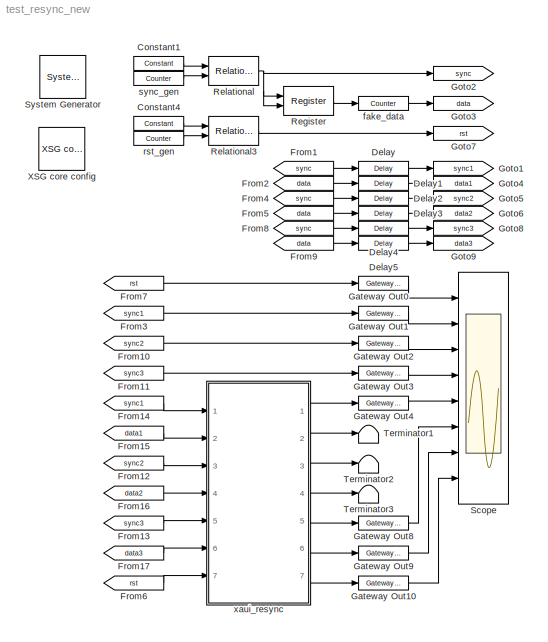
MODEL test_resync_new
KIND model
BLOCK [Reference]  System Generator  REF=xbsIndex_r4/ System Generator
  AttributesFormatString = System\\nGenerator
  FunctionWithSeparateData = off
  Ports = []
  RTWMemSecDataConstants = Inherit from model
  RTWMemSecDataInternal = Inherit from model
  RTWMemSecDataParameters = Inherit from model
  RTWMemSecFuncExecute = Inherit from model
  RTWMemSecFuncInitTerm = Inherit from model
  SID = 1
  ShowPortLabels = FromPortIcon
  SourceBlock = xbsIndex_r4/ System Generator
  SourceType = Xilinx System Generator Block
  SystemSampleTime = -1
  Tag = genX
  UserData = DataTag0
  UserDataPersistent = on
  block_type = sysgen
  block_version = 10.1.1
  clock_wrapper = Clock Enables
  core_generation = According to Block Masks
  dbl_ovrd = According to Block Masks
  dcm_input_clock_period = 100
  deprecated_control = off
  directory = ./isi_correlator_cropped/sysgen
  eval_field = 0
  has_advanced_control = 0
  incr_netlist = off
  infoedit = System Generator
  package = ff1136
  part = xc5vsx95t
  run_coregen = off
  sg_icon_stat = 46,43,-1,-1,red,beige,0,07734,right
  sg_mask_display = fprintf('','COMMENT: begin icon graphics');\npatch([0 46 46 0 ],[0 0 43 43 ],[0.93 0.92 0.86]);\npatch([11 4 14 4 11 22 25 28 40 30 21 14 23 14 21 30 40 28 25 22 11 ],[5 12 22 32 39 39 36 39 39 29 38 31 22 13 6 15 5 5 8 5 5 ],[0.6 0.2 0.25]);\nplot([0 46 46 0 0 ],[0 0 43 43 0 ]);\nfprintf('','COMMENT: end icon graphics');\nfprintf('','COMMENT: begin icon text');\nfprintf('','COMMENT: end icon text...<+5ch>
  sggui_pos = -1,-1,-1,-1
  simulink_period = 1
  speed = -1
  synthesis_tool = XST
  sysclk_period = 5
  testbench = off
  trim_vbits = Everywhere in SubSystem
  xilinxfamily = virtex5
BLOCK [Reference] Constant1  REF=xbsIndex_r4/Constant
  Ports = [0, 1]
  SID = 25
  SourceBlock = xbsIndex_r4/Constant
  SourceType = Xilinx Constant Block Block
  arith_type = Unsigned
  bin_pt = 0
  block_type = constant
  block_version = 10.1.3
  carry = CIN
  const = 10
  dbl_ovrd = off
  dsp48_infoedit = The use of this block for DSP48 instructions is deprecated.  Please use the Opmode block.
  equ = P=C
  explicit_period = on
  has_advanced_control = 0
  inp1 = P
  inp2 = PCIN>>17
  n_bits = 7
  opr = +
  opselect = C
  period = 1
  sg_icon_stat = 50,14,0,1,white,blue,0,46ffeebb,right,
  sg_list_contents = {'table'=>{'carry'=>'popup(0|1|CIN|~SIGN(P or PCIN)|~SIGN(A*B or A:B)|~SIGND(A*B or A:B))','inp1'=>'popup(0|P|A:B|A*B|C|P+C|A:B+C)','inp2'=>'popup(0|PCIN|P|C|PCIN>>17|P>>17)','opselect'=>'popup(C + A*B|PCIN + A*B|P + A*B|A * B|C + A:B|C - A:B|C|Custom)','userSelections'=>{'carry'=>'CIN','inp1'=>'P','inp2'=>'PCIN>>17','opselect'=>'C'}}}  <repeated x5 — deduplicated; at blocks: Constant1, Constant4, ConstantX, ConstantY, ConstantZ>
  sg_mask_display = fprintf('','COMMENT: begin icon graphics');\npatch([0 1 1 0 ],[0 0 1 1 ],[0.77 0.82 0.91]);\npatch([0.42 0.38 0.44 0.38 0.42 0.5 0.52 0.54 0.62 0.56 0.5 0.46 0.52 0.46 0.5 0.56 0.62 0.54 0.52 0.5 0.42 ],[0.142857 0.285714 0.5 0.714286 0.857143 0.857143 0.785714 0.857143 0.857143 0.642857 0.857143 0.714286 0.5 0.285714 0.142857 0.357143 0.142857 0.142857 0.214286 0.142857 0.142857 ],[0.98 0.96 0.92...<+207ch>
  sggui_pos = 20,20,400,346
BLOCK [Reference] Constant4  REF=xbsIndex_r4/Constant
  Ports = [0, 1]
  SID = 97
  SourceBlock = xbsIndex_r4/Constant
  SourceType = Xilinx Constant Block Block
  arith_type = Unsigned
  bin_pt = 0
  block_type = constant
  block_version = 10.1.3
  carry = CIN
  const = 5
  dbl_ovrd = off
  dsp48_infoedit = The use of this block for DSP48 instructions is deprecated.  Please use the Opmode block.
  equ = P=C
  explicit_period = on
  has_advanced_control = 0
  inp1 = P
  inp2 = PCIN>>17
  n_bits = 8
  opr = +
  opselect = C
  period = 1
  sg_icon_stat = 50,14,0,1,white,blue,0,98872051,right,
  sg_mask_display = fprintf('','COMMENT: begin icon graphics');\npatch([0 1 1 0 ],[0 0 1 1 ],[0.77 0.82 0.91]);\npatch([0.42 0.38 0.44 0.38 0.42 0.5 0.52 0.54 0.62 0.56 0.5 0.46 0.52 0.46 0.5 0.56 0.62 0.54 0.52 0.5 0.42 ],[0.142857 0.285714 0.5 0.714286 0.857143 0.857143 0.785714 0.857143 0.857143 0.642857 0.857143 0.714286 0.5 0.285714 0.142857 0.357143 0.142857 0.142857 0.214286 0.142857 0.142857 ],[0.98 0.96 0.92...<+206ch>  <repeated x4 — deduplicated; at blocks: Constant4, ConstantX, ConstantY, ConstantZ>
  sggui_pos = 20,20,400,346
BLOCK [Reference] Delay  REF=xbsIndex_r4/Delay
  Ports = [1, 1]
  SID = 112
  SourceBlock = xbsIndex_r4/Delay
  SourceType = Xilinx Delay Block
  block_type = delay
  block_version = 10.1.3
  dbl_ovrd = off
  en = off
  has_advanced_control = 0
  infoedit = Hardware notes: A delay line is a chain, each link of which is an SRL16 followed by a flip-flop.
  latency = 0
  reg_retiming = on
  sg_icon_stat = 50,14,1,1,white,blue,0,24450e6f,right,
  sg_mask_display = fprintf('','COMMENT: begin icon graphics');\npatch([0 1 1 0 ],[0 0 1 1 ],[0.77 0.82 0.91]);\npatch([0.42 0.38 0.44 0.38 0.42 0.5 0.52 0.54 0.62 0.56 0.5 0.46 0.52 0.46 0.5 0.56 0.62 0.54 0.52 0.5 0.42 ],[0.142857 0.285714 0.5 0.714286 0.857143 0.857143 0.785714 0.857143 0.857143 0.642857 0.857143 0.714286 0.5 0.285714 0.142857 0.357143 0.142857 0.142857 0.214286 0.142857 0.142857 ],[0.98 0.96 0.92...<+209ch>  <repeated x11 — deduplicated; at blocks: Delay, Delay1, Delay2, Delay3, Delay4, DelayX, DelayY, DelayZ>
  sggui_pos = 20,20,543,392
  xl_area = [0,0,0,0,0,0,0]
  xl_use_area = off
BLOCK [Reference] Delay1  REF=xbsIndex_r4/Delay
  Ports = [1, 1]
  SID = 113
  SourceBlock = xbsIndex_r4/Delay
  SourceType = Xilinx Delay Block
  block_type = delay
  block_version = 10.1.3
  dbl_ovrd = off
  en = off
  has_advanced_control = 0
  infoedit = Hardware notes: A delay line is a chain, each link of which is an SRL16 followed by a flip-flop.
  latency = 0
  reg_retiming = on
  sg_icon_stat = 50,14,1,1,white,blue,0,24450e6f,right,
  sggui_pos = 20,20,543,392
  xl_area = [0,0,0,0,0,0,0]
  xl_use_area = off
BLOCK [Reference] Delay2  REF=xbsIndex_r4/Delay
  Ports = [1, 1]
  SID = 118
  SourceBlock = xbsIndex_r4/Delay
  SourceType = Xilinx Delay Block
  block_type = delay
  block_version = 10.1.3
  dbl_ovrd = off
  en = off
  has_advanced_control = 0
  infoedit = Hardware notes: A delay line is a chain, each link of which is an SRL16 followed by a flip-flop.
  latency = 5
  reg_retiming = on
  sg_icon_stat = 50,14,1,1,white,blue,0,ec356abf,right,
  sggui_pos = 20,20,543,392
  xl_area = [0,0,0,0,0,0,0]
  xl_use_area = off
BLOCK [Reference] Delay3  REF=xbsIndex_r4/Delay
  Ports = [1, 1]
  SID = 119
  SourceBlock = xbsIndex_r4/Delay
  SourceType = Xilinx Delay Block
  block_type = delay
  block_version = 10.1.3
  dbl_ovrd = off
  en = off
  has_advanced_control = 0
  infoedit = Hardware notes: A delay line is a chain, each link of which is an SRL16 followed by a flip-flop.
  latency = 5
  reg_retiming = on
  sg_icon_stat = 50,14,1,1,white,blue,0,ec356abf,right,
  sggui_pos = 20,20,543,392
  xl_area = [0,0,0,0,0,0,0]
  xl_use_area = off
BLOCK [Reference] Delay4  REF=xbsIndex_r4/Delay
  Ports = [1, 1]
  SID = 122
  SourceBlock = xbsIndex_r4/Delay
  SourceType = Xilinx Delay Block
  block_type = delay
  block_version = 10.1.3
  dbl_ovrd = off
  en = off
  has_advanced_control = 0
  infoedit = Hardware notes: A delay line is a chain, each link of which is an SRL16 followed by a flip-flop.
  latency = 10
  reg_retiming = on
  sg_icon_stat = 50,14,1,1,white,blue,0,8c471295,right,
  sg_mask_display = fprintf('','COMMENT: begin icon graphics');\npatch([0 1 1 0 ],[0 0 1 1 ],[0.77 0.82 0.91]);\npatch([0.42 0.38 0.44 0.38 0.42 0.5 0.52 0.54 0.62 0.56 0.5 0.46 0.52 0.46 0.5 0.56 0.62 0.54 0.52 0.5 0.42 ],[0.142857 0.285714 0.5 0.714286 0.857143 0.857143 0.785714 0.857143 0.857143 0.642857 0.857143 0.714286 0.5 0.285714 0.142857 0.357143 0.142857 0.142857 0.214286 0.142857 0.142857 ],[0.98 0.96 0.92...<+210ch>
  sggui_pos = 20,20,543,392
  xl_area = [0,0,0,0,0,0,0]
  xl_use_area = off
BLOCK [Reference] Delay5  REF=xbsIndex_r4/Delay
  Ports = [1, 1]
  SID = 123
  SourceBlock = xbsIndex_r4/Delay
  SourceType = Xilinx Delay Block
  block_type = delay
  block_version = 10.1.3
  dbl_ovrd = off
  en = off
  has_advanced_control = 0
  infoedit = Hardware notes: A delay line is a chain, each link of which is an SRL16 followed by a flip-flop.
  latency = 10
  reg_retiming = on
  sg_icon_stat = 50,14,1,1,white,blue,0,8c471295,right,
  sg_mask_display = fprintf('','COMMENT: begin icon graphics');\npatch([0 1 1 0 ],[0 0 1 1 ],[0.77 0.82 0.91]);\npatch([0.42 0.38 0.44 0.38 0.42 0.5 0.52 0.54 0.62 0.56 0.5 0.46 0.52 0.46 0.5 0.56 0.62 0.54 0.52 0.5 0.42 ],[0.142857 0.285714 0.5 0.714286 0.857143 0.857143 0.785714 0.857143 0.857143 0.642857 0.857143 0.714286 0.5 0.285714 0.142857 0.357143 0.142857 0.142857 0.214286 0.142857 0.142857 ],[0.98 0.96 0.92...<+210ch>
  sggui_pos = 20,20,543,392
  xl_area = [0,0,0,0,0,0,0]
  xl_use_area = off
BLOCK [From] From1
  CloseFcn = tagdialog Close
  GotoTag = sync
  SID = 114
BLOCK [From] From10
  CloseFcn = tagdialog Close
  GotoTag = sync2
  SID = 133
BLOCK [From] From11
  CloseFcn = tagdialog Close
  GotoTag = sync3
  SID = 134
BLOCK [From] From12
  CloseFcn = tagdialog Close
  GotoTag = sync2
  SID = 135
BLOCK [From] From13
  CloseFcn = tagdialog Close
  GotoTag = sync3
  SID = 136
BLOCK [From] From14
  CloseFcn = tagdialog Close
  GotoTag = sync1
  SID = 137
BLOCK [From] From15
  CloseFcn = tagdialog Close
  GotoTag = data1
  SID = 138
BLOCK [From] From16
  CloseFcn = tagdialog Close
  GotoTag = data2
  SID = 139
BLOCK [From] From17
  CloseFcn = tagdialog Close
  GotoTag = data3
  SID = 140
BLOCK [From] From2
  CloseFcn = tagdialog Close
  GotoTag = data
  SID = 117
BLOCK [From] From3
  CloseFcn = tagdialog Close
  GotoTag = sync1
  SID = 30
BLOCK [From] From4
  CloseFcn = tagdialog Close
  GotoTag = sync
  SID = 120
BLOCK [From] From5
  CloseFcn = tagdialog Close
  GotoTag = data
  SID = 121
BLOCK [From] From6
  CloseFcn = tagdialog Close
  GotoTag = rst
  SID = 104
BLOCK [From] From7
  CloseFcn = tagdialog Close
  GotoTag = rst
  SID = 106
BLOCK [From] From8
  CloseFcn = tagdialog Close
  GotoTag = sync
  SID = 124
BLOCK [From] From9
  CloseFcn = tagdialog Close
  GotoTag = data
  SID = 125
BLOCK [Reference] Gateway Out0  REF=xbsIndex_r4/Gateway Out
  LOCs = {}
  Ports = [1, 1]
  SID = 7
  SourceBlock = xbsIndex_r4/Gateway Out
  SourceType = Xilinx Gateway Out Block
  block_type = gatewayout
  block_version = 11.3
  has_advanced_control = 0
  hdl_port = on
  infoedit = Gateway out block.  Converts Xilinx fixed point inputs into ouputs of type Simulink integer, double, or fixed point.<br><br>Hardware notes:  In hardware these blocks become top level output ports or are discarded, depending on how they are configured.  <repeated x8 — deduplicated; at blocks: Gateway Out0, Gateway Out1, Gateway Out10, Gateway Out2, Gateway Out3, Gateway Out4, Gateway Out8, Gateway Out9>
  locs_specified = off
  sg_icon_stat = 50,14,1,1,white,yellow,0,cc31b7ac,right,
  sg_mask_display = fprintf('','COMMENT: begin icon graphics');\npatch([0 1 1 0 ],[0 0 1 1 ],[0.95 0.93 0.65]);\npatch([0.42 0.38 0.44 0.38 0.42 0.5 0.52 0.54 0.62 0.56 0.5 0.46 0.52 0.46 0.5 0.56 0.62 0.54 0.52 0.5 0.42 ],[0.142857 0.285714 0.5 0.714286 0.857143 0.857143 0.785714 0.857143 0.857143 0.642857 0.857143 0.714286 0.5 0.285714 0.142857 0.357143 0.142857 0.142857 0.214286 0.142857 0.142857 ],[0.98 0.96 0.92...<+288ch>  <repeated x8 — deduplicated; at blocks: Gateway Out0, Gateway Out1, Gateway Out10, Gateway Out2, Gateway Out3, Gateway Out4, Gateway Out8, Gateway Out9>
  sggui_pos = 20,20,527,581
  timing_constraint = None
  xl_area = [0,0,0,0,0,0,0]
  xl_use_area = off
BLOCK [Reference] Gateway Out1  REF=xbsIndex_r4/Gateway Out
  LOCs = {}
  Ports = [1, 1]
  SID = 8
  SourceBlock = xbsIndex_r4/Gateway Out
  SourceType = Xilinx Gateway Out Block
  block_type = gatewayout
  block_version = 11.3
  has_advanced_control = 0
  hdl_port = on
  locs_specified = off
  sg_icon_stat = 50,14,1,1,white,yellow,0,cc31b7ac,right,
  sggui_pos = 20,20,527,581
  timing_constraint = None
  xl_area = [0,0,0,0,0,0,0]
  xl_use_area = off
BLOCK [Reference] Gateway Out10  REF=xbsIndex_r4/Gateway Out
  LOCs = {}
  Ports = [1, 1]
  SID = 143
  SourceBlock = xbsIndex_r4/Gateway Out
  SourceType = Xilinx Gateway Out Block
  block_type = gatewayout
  block_version = 11.3
  has_advanced_control = 0
  hdl_port = on
  locs_specified = off
  sg_icon_stat = 50,14,1,1,white,yellow,0,cc31b7ac,right,
  sggui_pos = 20,20,527,581
  timing_constraint = None
  xl_area = [0,0,0,0,0,0,0]
  xl_use_area = off
BLOCK [Reference] Gateway Out2  REF=xbsIndex_r4/Gateway Out
  LOCs = {}
  Ports = [1, 1]
  SID = 9
  SourceBlock = xbsIndex_r4/Gateway Out
  SourceType = Xilinx Gateway Out Block
  block_type = gatewayout
  block_version = 11.3
  has_advanced_control = 0
  hdl_port = on
  locs_specified = off
  sg_icon_stat = 50,14,1,1,white,yellow,0,cc31b7ac,right,
  sggui_pos = 20,20,527,581
  timing_constraint = None
  xl_area = [0,0,0,0,0,0,0]
  xl_use_area = off
BLOCK [Reference] Gateway Out3  REF=xbsIndex_r4/Gateway Out
  LOCs = {}
  Ports = [1, 1]
  SID = 10
  SourceBlock = xbsIndex_r4/Gateway Out
  SourceType = Xilinx Gateway Out Block
  block_type = gatewayout
  block_version = 11.3
  has_advanced_control = 0
  hdl_port = on
  locs_specified = off
  sg_icon_stat = 50,14,1,1,white,yellow,0,cc31b7ac,right,
  sggui_pos = 20,20,527,581
  timing_constraint = None
  xl_area = [0,0,0,0,0,0,0]
  xl_use_area = off
BLOCK [Reference] Gateway Out4  REF=xbsIndex_r4/Gateway Out
  LOCs = {}
  Ports = [1, 1]
  SID = 11
  SourceBlock = xbsIndex_r4/Gateway Out
  SourceType = Xilinx Gateway Out Block
  block_type = gatewayout
  block_version = 11.3
  has_advanced_control = 0
  hdl_port = on
  locs_specified = off
  sg_icon_stat = 50,14,1,1,white,yellow,0,cc31b7ac,right,
  sggui_pos = 20,20,527,581
  timing_constraint = None
  xl_area = [0,0,0,0,0,0,0]
  xl_use_area = off
BLOCK [Reference] Gateway Out8  REF=xbsIndex_r4/Gateway Out
  LOCs = {}
  Ports = [1, 1]
  SID = 141
  SourceBlock = xbsIndex_r4/Gateway Out
  SourceType = Xilinx Gateway Out Block
  block_type = gatewayout
  block_version = 11.3
  has_advanced_control = 0
  hdl_port = on
  locs_specified = off
  sg_icon_stat = 50,14,1,1,white,yellow,0,cc31b7ac,right,
  sggui_pos = 20,20,527,581
  timing_constraint = None
  xl_area = [0,0,0,0,0,0,0]
  xl_use_area = off
BLOCK [Reference] Gateway Out9  REF=xbsIndex_r4/Gateway Out
  LOCs = {}
  Ports = [1, 1]
  SID = 142
  SourceBlock = xbsIndex_r4/Gateway Out
  SourceType = Xilinx Gateway Out Block
  block_type = gatewayout
  block_version = 11.3
  has_advanced_control = 0
  hdl_port = on
  locs_specified = off
  sg_icon_stat = 50,14,1,1,white,yellow,0,cc31b7ac,right,
  sggui_pos = 20,20,527,581
  timing_constraint = None
  xl_area = [0,0,0,0,0,0,0]
  xl_use_area = off
BLOCK [Goto] Goto1
  GotoTag = sync1
  SID = 126
  TagVisibility = local
BLOCK [Goto] Goto2
  GotoTag = sync
  SID = 47
  TagVisibility = local
BLOCK [Goto] Goto3
  GotoTag = data
  SID = 48
  TagVisibility = local
BLOCK [Goto] Goto4
  GotoTag = data1
  SID = 127
  TagVisibility = local
BLOCK [Goto] Goto5
  GotoTag = sync2
  SID = 128
  TagVisibility = local
BLOCK [Goto] Goto6
  GotoTag = data2
  SID = 129
  TagVisibility = local
BLOCK [Goto] Goto7
  GotoTag = rst
  SID = 98
  TagVisibility = local
BLOCK [Goto] Goto8
  GotoTag = sync3
  SID = 130
  TagVisibility = local
BLOCK [Goto] Goto9
  GotoTag = data3
  SID = 131
  TagVisibility = local
BLOCK [Reference] Register  REF=xbsIndex_r4/Register
  Ports = [2, 1]
  SID = 12
  SourceBlock = xbsIndex_r4/Register
  SourceType = Xilinx Register Block
  block_type = register
  block_version = 10.1.3
  dbl_ovrd = off
  en = on
  has_advanced_control = 0
  init = 0
  rst = off
  sg_icon_stat = 50,29,2,1,white,blue,0,01f465d5,right,
  sg_mask_display = fprintf('','COMMENT: begin icon graphics');\npatch([0 1 1 0 ],[0 0 1 1 ],[0.77 0.82 0.91]);\npatch([0.34 0.24 0.38 0.24 0.34 0.5 0.54 0.58 0.74 0.62 0.5 0.4 0.54 0.4 0.5 0.62 0.74 0.58 0.54 0.5 0.34 ],[0.103448 0.275862 0.517241 0.758621 0.931034 0.931034 0.862069 0.931034 0.931034 0.724138 0.931034 0.758621 0.517241 0.275862 0.103448 0.310345 0.103448 0.103448 0.172414 0.103448 0.103448 ],[0.98 0...<+354ch>
  sggui_pos = 20,20,543,249
  xl_area = [0,0,0,0,0,0,0]
  xl_use_area = off
BLOCK [Reference] Relational  REF=xbsIndex_r4/Relational
  Ports = [2, 1]
  SID = 24
  SourceBlock = xbsIndex_r4/Relational
  SourceType = Xilinx Arithmetic Relational Operator Block
  block_type = relational
  block_version = 11.4
  dbl_ovrd = off
  en = off
  has_advanced_control = 0
  latency = 1
  mode = a=b
  sg_icon_stat = 50,29,2,1,white,blue,0,2d4703fd,right,
  sg_mask_display = fprintf('','COMMENT: begin icon graphics');\npatch([0 1 1 0 ],[0 0 1 1 ],[0.77 0.82 0.91]);\npatch([0.34 0.24 0.38 0.24 0.34 0.5 0.54 0.58 0.74 0.62 0.5 0.4 0.54 0.4 0.5 0.62 0.74 0.58 0.54 0.5 0.34 ],[0.103448 0.275862 0.517241 0.758621 0.931034 0.931034 0.862069 0.931034 0.931034 0.724138 0.931034 0.758621 0.517241 0.275862 0.103448 0.310345 0.103448 0.103448 0.172414 0.103448 0.103448 ],[0.98 0...<+330ch>
  sggui_pos = -1,-1,-1,-1
  xl_area = [0,0,0,0,0,0,0]
  xl_use_area = off
BLOCK [Reference] Relational3  REF=xbsIndex_r4/Relational
  Ports = [2, 1]
  SID = 101
  SourceBlock = xbsIndex_r4/Relational
  SourceType = Xilinx Arithmetic Relational Operator Block
  block_type = relational
  block_version = 11.4
  dbl_ovrd = off
  en = off
  has_advanced_control = 0
  latency = 1
  mode = a=b
  sg_icon_stat = 50,29,2,1,white,blue,0,2d4703fd,right,
  sg_mask_display = fprintf('','COMMENT: begin icon graphics');\npatch([0 1 1 0 ],[0 0 1 1 ],[0.77 0.82 0.91]);\npatch([0.34 0.24 0.38 0.24 0.34 0.5 0.54 0.58 0.74 0.62 0.5 0.4 0.54 0.4 0.5 0.62 0.74 0.58 0.54 0.5 0.34 ],[0.103448 0.275862 0.517241 0.758621 0.931034 0.931034 0.862069 0.931034 0.931034 0.724138 0.931034 0.758621 0.517241 0.275862 0.103448 0.310345 0.103448 0.103448 0.172414 0.103448 0.103448 ],[0.98 0...<+330ch>
  sggui_pos = -1,-1,-1,-1
  xl_area = [0,0,0,0,0,0,0]
  xl_use_area = off
BLOCK [Scope] Scope
  DataFormat = StructureWithTime
  Floating = off
  NumInputPorts = 8
  Ports = [8]
  SID = 13
  SampleTime = 0
  YMax = 1~35~1~35~1~35~1~5
  YMin = 0~0~0~0~0~0~0~-5
  ZoomMode = xonly
BLOCK [Terminator] Terminator1
  SID = 144
BLOCK [Terminator] Terminator2
  SID = 145
BLOCK [Terminator] Terminator3
  SID = 146
BLOCK [Reference] XSG core config  REF=xps_library/XSG core config  (lib defined in mdl_00b5cec29cd0, mdl_02ab6ecaa3d1, +5 more)
  BEE2_ctrl_clk_src = sys_clk
  BEE2_usr_clk_src = sys_clk
  CORR_clk_src = sys_clk
  FunctionWithSeparateData = off
  Ports = []
  ROACH_clk_src = adc0_clk
  RTWMemSecDataConstants = Inherit from model
  RTWMemSecDataInternal = Inherit from model
  RTWMemSecDataParameters = Inherit from model
  RTWMemSecFuncExecute = Inherit from model
  RTWMemSecFuncInitTerm = Inherit from model
  SID = 15
  ShowPortLabels = FromPortIcon
  SourceBlock = xps_library/XSG core config
  SourceType = xsg core config
  SystemSampleTime = -1
  Tag = xps:xsg
  clk_rate = 200
  clk_src = adc0_clk
  gpio_clk_bit_index = 0
  gpio_clk_io_group = iBOB:sma
  hw_sys = ROACH:sx95t
  iBOB_clk_src = sys_clk
  ibob_linux = off
  mpc_type = powerpc440_ext
  sample_period = 1
  synthesis_tool = XST
BLOCK [Reference] fake_data  REF=xbsIndex_r4/Counter
  Ports = [1, 1]
  SID = 16
  SourceBlock = xbsIndex_r4/Counter
  SourceType = Xilinx Counter Block
  arith_type = Unsigned
  bin_pt = 0
  block_type = counter
  block_version = 10.1.3
  cnt_by_val = 1
  cnt_to = Inf
  cnt_type = Free Running
  dbl_ovrd = off
  en = on
  explicit_period = on
  has_advanced_control = 0
  implementation = Fabric
  infoedit = Hardware notes: Free running counters are the least expensive in hardware.  A count limited counter is implemented by combining a counter with a comparator.
  load_pin = off
  n_bits = 5
  operation = Up
  period = 1
  rst = off
  sg_icon_stat = 50,14,1,1,white,blue,0,ed54cb7a,right,
  sg_mask_display = fprintf('','COMMENT: begin icon graphics');\npatch([0 1 1 0 ],[0 0 1 1 ],[0.77 0.82 0.91]);\npatch([0.42 0.38 0.44 0.38 0.42 0.5 0.52 0.54 0.62 0.56 0.5 0.46 0.52 0.46 0.5 0.56 0.62 0.54 0.52 0.5 0.42 ],[0.142857 0.285714 0.5 0.714286 0.857143 0.857143 0.785714 0.857143 0.857143 0.642857 0.857143 0.714286 0.5 0.285714 0.142857 0.357143 0.142857 0.142857 0.214286 0.142857 0.142857 ],[0.98 0.96 0.92...<+252ch>
  sggui_pos = 20,20,543,936
  start_count = 0
  use_behavioral_HDL = off
  use_rpm = off
  xl_area = [0,0,0,0,0,0,0]
  xl_use_area = off
BLOCK [Reference] rst_gen  REF=xbsIndex_r4/Counter
  Ports = [0, 1]
  SID = 103
  SourceBlock = xbsIndex_r4/Counter
  SourceType = Xilinx Counter Block
  arith_type = Unsigned
  bin_pt = 0
  block_type = counter
  block_version = 10.1.3
  cnt_by_val = 1
  cnt_to = Inf
  cnt_type = Free Running
  dbl_ovrd = off
  en = off
  explicit_period = on
  has_advanced_control = 0
  implementation = Fabric
  infoedit = Hardware notes: Free running counters are the least expensive in hardware.  A count limited counter is implemented by combining a counter with a comparator.
  load_pin = off
  n_bits = 8
  operation = Up
  period = 1
  rst = off
  sg_icon_stat = 50,14,0,1,white,blue,0,335d209d,right,
  sg_mask_display = fprintf('','COMMENT: begin icon graphics');\npatch([0 1 1 0 ],[0 0 1 1 ],[0.77 0.82 0.91]);\npatch([0.42 0.38 0.44 0.38 0.42 0.5 0.52 0.54 0.62 0.56 0.5 0.46 0.52 0.46 0.5 0.56 0.62 0.54 0.52 0.5 0.42 ],[0.142857 0.285714 0.5 0.714286 0.857143 0.857143 0.785714 0.857143 0.857143 0.642857 0.857143 0.714286 0.5 0.285714 0.142857 0.357143 0.142857 0.142857 0.214286 0.142857 0.142857 ],[0.98 0.96 0.92...<+208ch>
  sggui_pos = 0,0,543,936
  start_count = 0
  use_behavioral_HDL = off
  use_rpm = off
  xl_area = [0,0,0,0,0,0,0]
  xl_use_area = off
BLOCK [Reference] sync_gen  REF=xbsIndex_r4/Counter
  Ports = [0, 1]
  SID = 23
  SourceBlock = xbsIndex_r4/Counter
  SourceType = Xilinx Counter Block
  arith_type = Unsigned
  bin_pt = 0
  block_type = counter
  block_version = 10.1.3
  cnt_by_val = 1
  cnt_to = Inf
  cnt_type = Free Running
  dbl_ovrd = off
  en = off
  explicit_period = on
  has_advanced_control = 0
  implementation = Fabric
  infoedit = Hardware notes: Free running counters are the least expensive in hardware.  A count limited counter is implemented by combining a counter with a comparator.
  load_pin = off
  n_bits = 7
  operation = Up
  period = 1
  rst = off
  sg_icon_stat = 50,14,0,1,white,blue,0,335d209d,right,
  sg_mask_display = fprintf('','COMMENT: begin icon graphics');\npatch([0 1 1 0 ],[0 0 1 1 ],[0.77 0.82 0.91]);\npatch([0.42 0.38 0.44 0.38 0.42 0.5 0.52 0.54 0.62 0.56 0.5 0.46 0.52 0.46 0.5 0.56 0.62 0.54 0.52 0.5 0.42 ],[0.142857 0.285714 0.5 0.714286 0.857143 0.857143 0.785714 0.857143 0.857143 0.642857 0.857143 0.714286 0.5 0.285714 0.142857 0.357143 0.142857 0.142857 0.214286 0.142857 0.142857 ],[0.98 0.96 0.92...<+208ch>
  sggui_pos = 0,0,543,936
  start_count = 0
  use_behavioral_HDL = off
  use_rpm = off
  xl_area = [0,0,0,0,0,0,0]
  xl_use_area = off
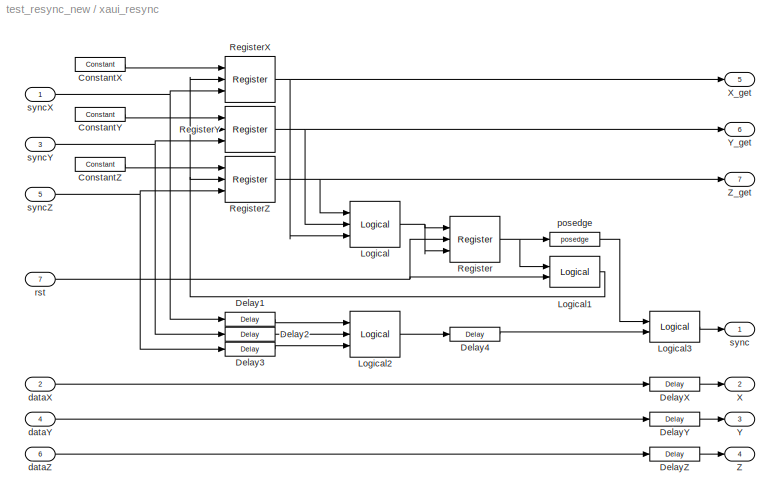
BLOCK [SubSystem] xaui_resync
  AncestorBlock = isi_correlator_lib/xaui_resync
  FunctionWithSeparateData = off
  MaskHideContents = off
  MinAlgLoopOccurrences = off
  Opaque = off
  Ports = [7, 7]
  PropExecContextOutsideSubsystem = off
  RTWSystemCode = Auto
  RequestExecContextInheritance = off
  SID = 132
BLOCK [Reference] xaui_resync/ConstantX  REF=xbsIndex_r4/Constant
  Ports = [0, 1]
  SID = 1877
  SourceBlock = xbsIndex_r4/Constant
  SourceType = Xilinx Constant Block Block
  arith_type = Boolean
  bin_pt = 0
  block_type = constant
  block_version = 10.1.1
  carry = CIN
  const = 0
  dbl_ovrd = off
  dsp48_infoedit = The use of this block for DSP48 instructions is deprecated.  Please use the Opmode block.
  equ = P=C
  explicit_period = on
  has_advanced_control = 0
  inp1 = P
  inp2 = PCIN>>17
  n_bits = 1
  opr = +
  opselect = C
  period = 1
  sg_icon_stat = 50,14,0,1,white,blue,0,bf4ddd8b,right,
  sggui_pos = 20,20,554,541
BLOCK [Reference] xaui_resync/ConstantY  REF=xbsIndex_r4/Constant
  Ports = [0, 1]
  SID = 1878
  SourceBlock = xbsIndex_r4/Constant
  SourceType = Xilinx Constant Block Block
  arith_type = Boolean
  bin_pt = 0
  block_type = constant
  block_version = 10.1.1
  carry = CIN
  const = 0
  dbl_ovrd = off
  dsp48_infoedit = The use of this block for DSP48 instructions is deprecated.  Please use the Opmode block.
  equ = P=C
  explicit_period = on
  has_advanced_control = 0
  inp1 = P
  inp2 = PCIN>>17
  n_bits = 1
  opr = +
  opselect = C
  period = 1
  sg_icon_stat = 50,14,0,1,white,blue,0,bf4ddd8b,right,
  sggui_pos = 20,20,554,541
BLOCK [Reference] xaui_resync/ConstantZ  REF=xbsIndex_r4/Constant
  Ports = [0, 1]
  SID = 1879
  SourceBlock = xbsIndex_r4/Constant
  SourceType = Xilinx Constant Block Block
  arith_type = Boolean
  bin_pt = 0
  block_type = constant
  block_version = 10.1.1
  carry = CIN
  const = 0
  dbl_ovrd = off
  dsp48_infoedit = The use of this block for DSP48 instructions is deprecated.  Please use the Opmode block.
  equ = P=C
  explicit_period = on
  has_advanced_control = 0
  inp1 = P
  inp2 = PCIN>>17
  n_bits = 1
  opr = +
  opselect = C
  period = 1
  sg_icon_stat = 50,14,0,1,white,blue,0,bf4ddd8b,right,
  sggui_pos = 20,20,554,541
BLOCK [Reference] xaui_resync/Delay1  REF=xbsIndex_r4/Delay
  Ports = [1, 1]
  SID = 1900
  SourceBlock = xbsIndex_r4/Delay
  SourceType = Xilinx Delay Block
  block_type = delay
  block_version = 10.1.3
  dbl_ovrd = off
  en = off
  has_advanced_control = 0
  infoedit = Hardware notes: A delay line is a chain, each link of which is an SRL16 followed by a flip-flop.
  latency = 1
  reg_retiming = on
  sg_icon_stat = 50,14,1,1,white,blue,0,07b98262,right,
  sggui_pos = 20,20,543,392
  xl_area = [0,0,0,0,0,0,0]
  xl_use_area = off
BLOCK [Reference] xaui_resync/Delay2  REF=xbsIndex_r4/Delay
  Ports = [1, 1]
  SID = 1901
  SourceBlock = xbsIndex_r4/Delay
  SourceType = Xilinx Delay Block
  block_type = delay
  block_version = 10.1.3
  dbl_ovrd = off
  en = off
  has_advanced_control = 0
  infoedit = Hardware notes: A delay line is a chain, each link of which is an SRL16 followed by a flip-flop.
  latency = 1
  reg_retiming = on
  sg_icon_stat = 50,14,1,1,white,blue,0,07b98262,right,
  sggui_pos = 20,20,543,392
  xl_area = [0,0,0,0,0,0,0]
  xl_use_area = off
BLOCK [Reference] xaui_resync/Delay3  REF=xbsIndex_r4/Delay
  Ports = [1, 1]
  SID = 1902
  SourceBlock = xbsIndex_r4/Delay
  SourceType = Xilinx Delay Block
  block_type = delay
  block_version = 10.1.3
  dbl_ovrd = off
  en = off
  has_advanced_control = 0
  infoedit = Hardware notes: A delay line is a chain, each link of which is an SRL16 followed by a flip-flop.
  latency = 1
  reg_retiming = on
  sg_icon_stat = 50,14,1,1,white,blue,0,07b98262,right,
  sggui_pos = 20,20,543,392
  xl_area = [0,0,0,0,0,0,0]
  xl_use_area = off
BLOCK [Reference] xaui_resync/Delay4  REF=xbsIndex_r4/Delay
  Ports = [1, 1]
  SID = 1903
  SourceBlock = xbsIndex_r4/Delay
  SourceType = Xilinx Delay Block
  block_type = delay
  block_version = 10.1.3
  dbl_ovrd = off
  en = off
  has_advanced_control = 0
  infoedit = Hardware notes: A delay line is a chain, each link of which is an SRL16 followed by a flip-flop.
  latency = 1
  reg_retiming = on
  sg_icon_stat = 50,14,1,1,white,blue,0,07b98262,right,
  sggui_pos = 20,20,543,392
  xl_area = [0,0,0,0,0,0,0]
  xl_use_area = off
BLOCK [Reference] xaui_resync/DelayX  REF=xbsIndex_r4/Delay
  Ports = [1, 1]
  SID = 1881
  SourceBlock = xbsIndex_r4/Delay
  SourceType = Xilinx Delay Block
  block_type = delay
  block_version = 10.1.3
  dbl_ovrd = off
  en = off
  has_advanced_control = 0
  infoedit = Hardware notes: A delay line is a chain, each link of which is an SRL16 followed by a flip-flop.
  latency = 1
  reg_retiming = on
  sg_icon_stat = 50,14,1,1,white,blue,0,07b98262,right,
  sggui_pos = 20,20,543,392
  xl_area = [0,0,0,0,0,0,0]
  xl_use_area = off
BLOCK [Reference] xaui_resync/DelayY  REF=xbsIndex_r4/Delay
  Ports = [1, 1]
  SID = 1882
  SourceBlock = xbsIndex_r4/Delay
  SourceType = Xilinx Delay Block
  block_type = delay
  block_version = 10.1.3
  dbl_ovrd = off
  en = off
  has_advanced_control = 0
  infoedit = Hardware notes: A delay line is a chain, each link of which is an SRL16 followed by a flip-flop.
  latency = 1
  reg_retiming = on
  sg_icon_stat = 50,14,1,1,white,blue,0,07b98262,right,
  sggui_pos = 0,0,543,392
  xl_area = [0,0,0,0,0,0,0]
  xl_use_area = off
BLOCK [Reference] xaui_resync/DelayZ  REF=xbsIndex_r4/Delay
  Ports = [1, 1]
  SID = 1883
  SourceBlock = xbsIndex_r4/Delay
  SourceType = Xilinx Delay Block
  block_type = delay
  block_version = 10.1.3
  dbl_ovrd = off
  en = off
  has_advanced_control = 0
  infoedit = Hardware notes: A delay line is a chain, each link of which is an SRL16 followed by a flip-flop.
  latency = 1
  reg_retiming = on
  sg_icon_stat = 50,14,1,1,white,blue,0,07b98262,right,
  sggui_pos = 0,0,543,392
  xl_area = [0,0,0,0,0,0,0]
  xl_use_area = off
BLOCK [Reference] xaui_resync/Logical  REF=xbsIndex_r4/Logical
  Ports = [3, 1]
  SID = 1884
  SourceBlock = xbsIndex_r4/Logical
  SourceType = Xilinx Logical Block Block
  align_bp = on
  arith_type = Unsigned
  bin_pt = 0
  block_type = logical
  block_version = 11.4
  dbl_ovrd = off
  en = off
  has_advanced_control = 0
  inputs = 3
  latency = 1
  logical_function = NOR
  n_bits = 16
  precision = Full
  sg_icon_stat = 50,46,3,1,white,blue,0,488b1eb1,right,
  sg_list_contents = {'table'=>{'logical_function'=>'popup(AND|NAND|OR|NOR|XOR|XNOR)','userSelections'=>{'logical_function'=>'NOR'}}}
  sg_mask_display = fprintf('','COMMENT: begin icon graphics');\npatch([0 1 1 0 ],[0 0 1 1 ],[0.77 0.82 0.91]);\npatch([0.26 0.1 0.32 0.1 0.26 0.5 0.56 0.62 0.88 0.68 0.48 0.34 0.58 0.34 0.48 0.68 0.88 0.62 0.56 0.5 0.26 ],[0.108696 0.282609 0.521739 0.76087 0.934783 0.934783 0.869565 0.934783 0.934783 0.717391 0.934783 0.782609 0.521739 0.26087 0.108696 0.326087 0.108696 0.108696 0.173913 0.108696 0.108696 ],[0.98 0...<+238ch>
  sggui_pos = -1,-1,-1,-1
  xl_area = [0,0,0,0,0,0,0]
  xl_use_area = off
BLOCK [Reference] xaui_resync/Logical1  REF=xbsIndex_r4/Logical
  Ports = [2, 1]
  SID = 1885
  SourceBlock = xbsIndex_r4/Logical
  SourceType = Xilinx Logical Block Block
  align_bp = on
  arith_type = Unsigned
  bin_pt = 0
  block_type = logical
  block_version = 11.4
  dbl_ovrd = off
  en = off
  has_advanced_control = 0
  inputs = 2
  latency = 0
  logical_function = OR
  n_bits = 16
  precision = Full
  sg_icon_stat = 50,31,2,1,white,blue,0,fc354646,right,
  sg_list_contents = {'table'=>{'logical_function'=>'popup(AND|NAND|OR|NOR|XOR|XNOR)','userSelections'=>{'logical_function'=>'OR'}}}
  sg_mask_display = fprintf('','COMMENT: begin icon graphics');\npatch([0 1 1 0 ],[0 0 1 1 ],[0.77 0.82 0.91]);\npatch([0.34 0.24 0.38 0.24 0.34 0.5 0.54 0.58 0.76 0.62 0.48 0.38 0.52 0.38 0.48 0.62 0.76 0.58 0.54 0.5 0.34 ],[0.0967742 0.258065 0.483871 0.709677 0.870968 0.870968 0.806452 0.870968 0.870968 0.645161 0.870968 0.709677 0.483871 0.258065 0.0967742 0.322581 0.0967742 0.0967742 0.16129 0.0967742 0.0967742 ...<+246ch>
  sggui_pos = -1,-1,-1,-1
  xl_area = [0,0,0,0,0,0,0]
  xl_use_area = off
BLOCK [Reference] xaui_resync/Logical2  REF=xbsIndex_r4/Logical
  Ports = [3, 1]
  SID = 1899
  SourceBlock = xbsIndex_r4/Logical
  SourceType = Xilinx Logical Block Block
  align_bp = on
  arith_type = Unsigned
  bin_pt = 0
  block_type = logical
  block_version = 11.4
  dbl_ovrd = off
  en = off
  has_advanced_control = 0
  inputs = 3
  latency = 1
  logical_function = OR
  n_bits = 16
  precision = Full
  sg_icon_stat = 50,46,3,1,white,blue,0,6601904e,right,
  sg_list_contents = {'table'=>{'logical_function'=>'popup(AND|NAND|OR|NOR|XOR|XNOR)','userSelections'=>{'logical_function'=>'OR'}}}
  sg_mask_display = fprintf('','COMMENT: begin icon graphics');\npatch([0 1 1 0 ],[0 0 1 1 ],[0.77 0.82 0.91]);\npatch([0.26 0.1 0.32 0.1 0.26 0.5 0.56 0.62 0.88 0.68 0.48 0.34 0.58 0.34 0.48 0.68 0.88 0.62 0.56 0.5 0.26 ],[0.108696 0.282609 0.521739 0.76087 0.934783 0.934783 0.869565 0.934783 0.934783 0.717391 0.934783 0.782609 0.521739 0.26087 0.108696 0.326087 0.108696 0.108696 0.173913 0.108696 0.108696 ],[0.98 0...<+237ch>
  sggui_pos = -1,-1,-1,-1
  xl_area = [0,0,0,0,0,0,0]
  xl_use_area = off
BLOCK [Reference] xaui_resync/Logical3  REF=xbsIndex_r4/Logical
  Ports = [2, 1]
  SID = 1904
  SourceBlock = xbsIndex_r4/Logical
  SourceType = Xilinx Logical Block Block
  align_bp = on
  arith_type = Unsigned
  bin_pt = 0
  block_type = logical
  block_version = 11.4
  dbl_ovrd = off
  en = off
  has_advanced_control = 0
  inputs = 2
  latency = 1
  logical_function = OR
  n_bits = 16
  precision = Full
  sg_icon_stat = 50,31,2,1,white,blue,0,d26eadf1,right,
  sg_list_contents = {'table'=>{'logical_function'=>'popup(AND|NAND|OR|NOR|XOR|XNOR)','userSelections'=>{'logical_function'=>'OR'}}}
  sg_mask_display = fprintf('','COMMENT: begin icon graphics');\npatch([0 1 1 0 ],[0 0 1 1 ],[0.77 0.82 0.91]);\npatch([0.34 0.24 0.38 0.24 0.34 0.5 0.54 0.58 0.76 0.62 0.48 0.38 0.52 0.38 0.48 0.62 0.76 0.58 0.54 0.5 0.34 ],[0.0967742 0.258065 0.483871 0.709677 0.870968 0.870968 0.806452 0.870968 0.870968 0.645161 0.870968 0.709677 0.483871 0.258065 0.0967742 0.322581 0.0967742 0.0967742 0.16129 0.0967742 0.0967742 ...<+246ch>
  sggui_pos = -1,-1,-1,-1
  xl_area = [0,0,0,0,0,0,0]
  xl_use_area = off
BLOCK [Reference] xaui_resync/Register  REF=xbsIndex_r4/Register
  Ports = [3, 1]
  SID = 1886
  SourceBlock = xbsIndex_r4/Register
  SourceType = Xilinx Register Block
  block_type = register
  block_version = 11.4
  dbl_ovrd = off
  en = on
  has_advanced_control = 0
  init = 0
  rst = on
  sg_icon_stat = 50,46,3,1,white,blue,0,b821322c,right,
  sg_mask_display = fprintf('','COMMENT: begin icon graphics');\npatch([0 1 1 0 ],[0 0 1 1 ],[0.77 0.82 0.91]);\npatch([0.26 0.1 0.32 0.1 0.26 0.5 0.56 0.62 0.88 0.68 0.48 0.34 0.58 0.34 0.48 0.68 0.88 0.62 0.56 0.5 0.26 ],[0.108696 0.282609 0.521739 0.76087 0.934783 0.934783 0.869565 0.934783 0.934783 0.717391 0.934783 0.782609 0.521739 0.26087 0.108696 0.326087 0.108696 0.108696 0.173913 0.108696 0.108696 ],[0.98 0...<+399ch>  <repeated x4 — deduplicated; at blocks: Register, RegisterX, RegisterY, RegisterZ>
  sggui_pos = 0,0,419,209
  xl_area = [0,0,0,0,0,0,0]
  xl_use_area = off
BLOCK [Reference] xaui_resync/RegisterX  REF=xbsIndex_r4/Register
  Ports = [3, 1]
  SID = 1887
  SourceBlock = xbsIndex_r4/Register
  SourceType = Xilinx Register Block
  block_type = register
  block_version = 11.4
  dbl_ovrd = off
  en = on
  has_advanced_control = 0
  init = 1
  rst = on
  sg_icon_stat = 50,46,3,1,white,blue,0,b821322c,right,
  sggui_pos = 0,0,419,209
  xl_area = [0,0,0,0,0,0,0]
  xl_use_area = off
BLOCK [Reference] xaui_resync/RegisterY  REF=xbsIndex_r4/Register
  Ports = [3, 1]
  SID = 1888
  SourceBlock = xbsIndex_r4/Register
  SourceType = Xilinx Register Block
  block_type = register
  block_version = 11.4
  dbl_ovrd = off
  en = on
  has_advanced_control = 0
  init = 1
  rst = on
  sg_icon_stat = 50,46,3,1,white,blue,0,b821322c,right,
  sggui_pos = 0,0,419,209
  xl_area = [0,0,0,0,0,0,0]
  xl_use_area = off
BLOCK [Reference] xaui_resync/RegisterZ  REF=xbsIndex_r4/Register
  Ports = [3, 1]
  SID = 1889
  SourceBlock = xbsIndex_r4/Register
  SourceType = Xilinx Register Block
  block_type = register
  block_version = 11.4
  dbl_ovrd = off
  en = on
  has_advanced_control = 0
  init = 1
  rst = on
  sg_icon_stat = 50,46,3,1,white,blue,0,b821322c,right,
  sggui_pos = 0,0,419,209
  xl_area = [0,0,0,0,0,0,0]
  xl_use_area = off
BLOCK [Outport] xaui_resync/X
  IconDisplay = Port number
  OutDataType = sfix(16)
  OutScaling = 2^0
  Port = 2
  SID = 1892
BLOCK [Outport] xaui_resync/X_get
  IconDisplay = Port number
  OutDataType = sfix(16)
  OutScaling = 2^0
  Port = 5
  SID = 1895
BLOCK [Outport] xaui_resync/Y
  IconDisplay = Port number
  OutDataType = sfix(16)
  OutScaling = 2^0
  Port = 3
  SID = 1893
BLOCK [Outport] xaui_resync/Y_get
  IconDisplay = Port number
  OutDataType = sfix(16)
  OutScaling = 2^0
  Port = 6
  SID = 1896
BLOCK [Outport] xaui_resync/Z
  IconDisplay = Port number
  OutDataType = sfix(16)
  OutScaling = 2^0
  Port = 4
  SID = 1894
BLOCK [Outport] xaui_resync/Z_get
  IconDisplay = Port number
  OutDataType = sfix(16)
  OutScaling = 2^0
  Port = 7
  SID = 1897
BLOCK [Inport] xaui_resync/dataX
  IconDisplay = Port number
  OutDataType = sfix(16)
  OutScaling = 2^0
  Port = 2
  SID = 1871
BLOCK [Inport] xaui_resync/dataY
  IconDisplay = Port number
  OutDataType = sfix(16)
  OutScaling = 2^0
  Port = 4
  SID = 1873
BLOCK [Inport] xaui_resync/dataZ
  IconDisplay = Port number
  OutDataType = sfix(16)
  OutScaling = 2^0
  Port = 6
  SID = 1875
BLOCK [Reference] xaui_resync/posedge  REF=casper_library/Misc/posedge  (lib defined in mdl_138b2fc3435f, mdl_4ed325b712b3, +2 more)
  FunctionWithSeparateData = off
  Ports = [1, 1]
  RTWMemSecDataConstants = Inherit from model
  RTWMemSecDataInternal = Inherit from model
  RTWMemSecDataParameters = Inherit from model
  RTWMemSecFuncExecute = Inherit from model
  RTWMemSecFuncInitTerm = Inherit from model
  SID = 1890
  ShowPortLabels = FromPortIcon
  SourceBlock = casper_library/Misc/posedge
  SourceType = posedge
  SystemSampleTime = -1
  Tag = Rising Edge Detector
BLOCK [Inport] xaui_resync/rst
  IconDisplay = Port number
  OutDataType = sfix(16)
  OutScaling = 2^0
  Port = 7
  SID = 1876
BLOCK [Outport] xaui_resync/sync
  IconDisplay = Port number
  OutDataType = sfix(16)
  OutScaling = 2^0
  SID = 1891
BLOCK [Inport] xaui_resync/syncX
  IconDisplay = Port number
  OutDataType = sfix(16)
  OutScaling = 2^0
  SID = 1870
BLOCK [Inport] xaui_resync/syncY
  IconDisplay = Port number
  OutDataType = sfix(16)
  OutScaling = 2^0
  Port = 3
  SID = 1872
BLOCK [Inport] xaui_resync/syncZ
  IconDisplay = Port number
  OutDataType = sfix(16)
  OutScaling = 2^0
  Port = 5
  SID = 1874
LINE Constant1:1 -> Relational:1
LINE Constant4:1 -> Relational3:1
LINE Delay1:1 -> Goto4:1
LINE Delay2:1 -> Goto5:1
LINE Delay3:1 -> Goto6:1
LINE Delay4:1 -> Goto8:1
LINE Delay5:1 -> Goto9:1
LINE Delay:1 -> Goto1:1
LINE From10:1 -> Gateway Out2:1
LINE From11:1 -> Gateway Out3:1
LINE From12:1 -> xaui_resync:3
LINE From13:1 -> xaui_resync:5
LINE From14:1 -> xaui_resync:1
LINE From15:1 -> xaui_resync:2
LINE From16:1 -> xaui_resync:4
LINE From17:1 -> xaui_resync:6
LINE From1:1 -> Delay:1
LINE From2:1 -> Delay1:1
LINE From3:1 -> Gateway Out1:1
LINE From4:1 -> Delay2:1
LINE From5:1 -> Delay3:1
LINE From6:1 -> xaui_resync:7
LINE From7:1 -> Gateway Out0:1
LINE From8:1 -> Delay4:1
LINE From9:1 -> Delay5:1
LINE Gateway Out0:1 -> Scope:1
LINE Gateway Out10:1 -> Scope:8
LINE Gateway Out1:1 -> Scope:2
LINE Gateway Out2:1 -> Scope:3
LINE Gateway Out3:1 -> Scope:4
LINE Gateway Out4:1 -> Scope:5
LINE Gateway Out8:1 -> Scope:6
LINE Gateway Out9:1 -> Scope:7
LINE Register:1 -> fake_data:1
LINE Relational3:1 -> Goto7:1
NET Relational:1 -> Goto2:1, Register:1, Register:2
LINE fake_data:1 -> Goto3:1
LINE rst_gen:1 -> Relational3:2
LINE sync_gen:1 -> Relational:2
LINE xaui_resync/ConstantX:1 -> xaui_resync/RegisterX:1
LINE xaui_resync/ConstantY:1 -> xaui_resync/RegisterY:1
LINE xaui_resync/ConstantZ:1 -> xaui_resync/RegisterZ:1
LINE xaui_resync/Delay1:1 -> xaui_resync/Logical2:1
LINE xaui_resync/Delay2:1 -> xaui_resync/Logical2:2
LINE xaui_resync/Delay3:1 -> xaui_resync/Logical2:3
LINE xaui_resync/Delay4:1 -> xaui_resync/Logical3:2
LINE xaui_resync/DelayX:1 -> xaui_resync/X:1
LINE xaui_resync/DelayY:1 -> xaui_resync/Y:1
LINE xaui_resync/DelayZ:1 -> xaui_resync/Z:1
NET xaui_resync/Logical1:1 -> xaui_resync/RegisterX:2, xaui_resync/RegisterY:2, xaui_resync/RegisterZ:2
LINE xaui_resync/Logical2:1 -> xaui_resync/Delay4:1
LINE xaui_resync/Logical3:1 -> xaui_resync/sync:1
NET xaui_resync/Logical:1 -> xaui_resync/Register:1, xaui_resync/Register:3
NET xaui_resync/Register:1 -> xaui_resync/Logical1:1, xaui_resync/posedge:1
NET xaui_resync/RegisterX:1 -> xaui_resync/Logical:3, xaui_resync/X_get:1
NET xaui_resync/RegisterY:1 -> xaui_resync/Logical:2, xaui_resync/Y_get:1
NET xaui_resync/RegisterZ:1 -> xaui_resync/Logical:1, xaui_resync/Z_get:1
LINE xaui_resync/dataX:1 -> xaui_resync/DelayX:1
LINE xaui_resync/dataY:1 -> xaui_resync/DelayY:1
LINE xaui_resync/dataZ:1 -> xaui_resync/DelayZ:1
LINE xaui_resync/posedge:1 -> xaui_resync/Logical3:1
NET xaui_resync/rst:1 -> xaui_resync/Logical1:2, xaui_resync/Register:2
NET xaui_resync/syncX:1 -> xaui_resync/Delay1:1, xaui_resync/RegisterX:3
NET xaui_resync/syncY:1 -> xaui_resync/Delay2:1, xaui_resync/RegisterY:3
NET xaui_resync/syncZ:1 -> xaui_resync/Delay3:1, xaui_resync/RegisterZ:3
LINE xaui_resync:1 -> Gateway Out4:1
LINE xaui_resync:2 -> Terminator1:1
LINE xaui_resync:3 -> Terminator2:1
LINE xaui_resync:4 -> Terminator3:1
LINE xaui_resync:5 -> Gateway Out8:1
LINE xaui_resync:6 -> Gateway Out9:1
LINE xaui_resync:7 -> Gateway Out10:1
note: NET lines group one-source signal fan-out (src -> all destinations, sorted); 1:1 wires keep LINE
